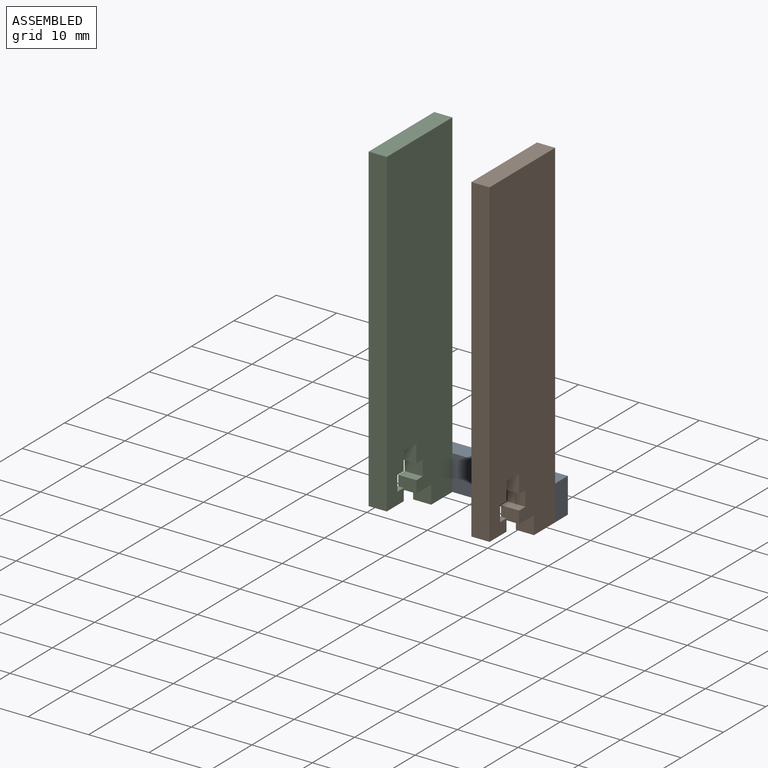
[diagram: assembled view]
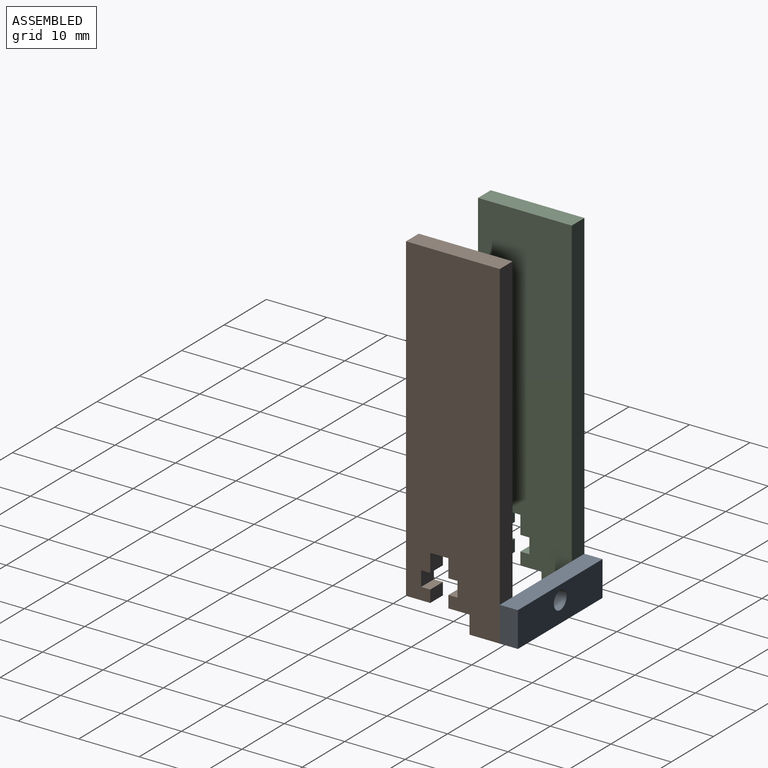
[diagram: assembled view, second angle]
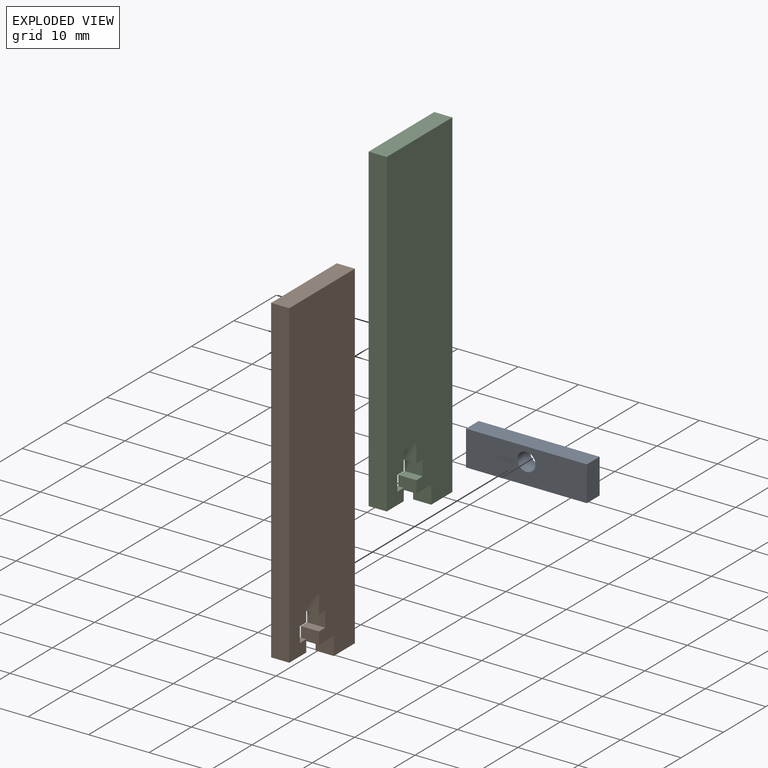
[diagram: exploded view]
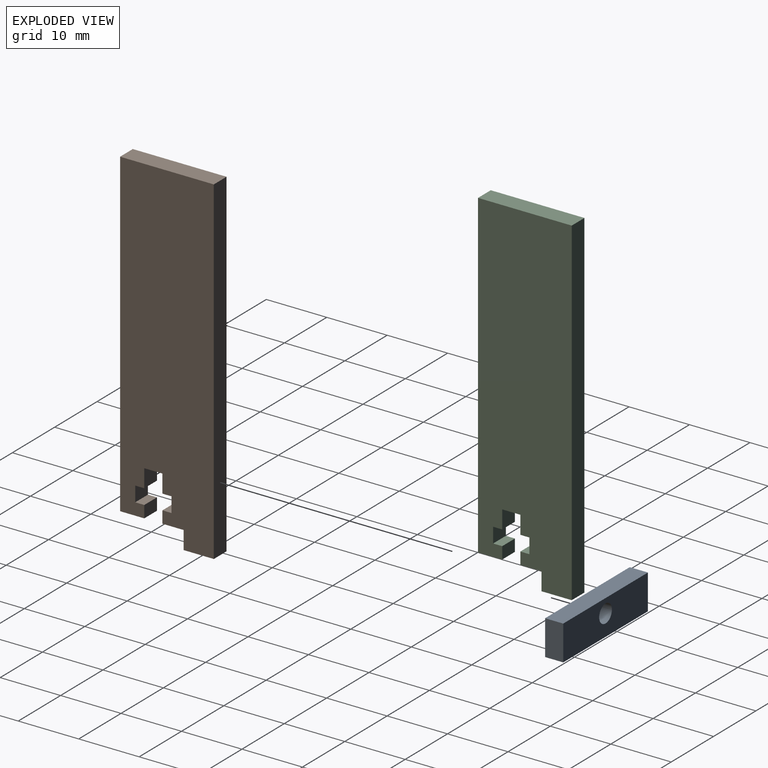
[diagram: exploded view, second angle]
ASSEMBLY  parts=3 mates=2
PART A: 7 faces, bbox 20x3x5.8 mm
  f0: plane 20x3mm, normal (0,0,1), area 60mm2, adj f1,f4,f5,f6
  f1: plane 5.8x3mm, normal (-1,0,0), area 17.4mm2, adj f0,f2,f5,f6
  f2: plane 20x3mm, normal (0,0,-1), area 60mm2, adj f1,f4,f5,f6
  f3: cylinder r=1.5mm len=3mm, axis (0,1,0), area 28.3mm2, adj f5,f6
  f4: plane 5.8x3mm, normal (1,0,0), area 17.4mm2, adj f0,f2,f5,f6
  f5: plane 20x5.8mm, normal (0,-1,0), area 108.9mm2, adj f0,f1,f2,f3,f4
  f6: plane 20x5.8mm, normal (0,1,0), area 108.9mm2, adj f0,f1,f2,f3,f4
PART B: 20 faces, bbox 15.5x56x3 mm
  f0: plane 3x1.5mm, normal (0,1,0), area 4.5mm2, adj f1,f17,f18,f19
  f1: plane 3x2mm, normal (-1,0,0), area 6mm2, adj f0,f2,f18,f19
  f2: plane 3.5x3mm, normal (0,-1,0), area 10.5mm2, adj f1,f3,f18,f19
  f3: plane 3x3mm, normal (-1,0,0), area 9mm2, adj f2,f4,f18,f19
  f4: plane 5x3mm, normal (0,-1,0), area 15mm2, adj f3,f5,f18,f19
  f5: plane 56x3mm, normal (1,0,0), area 168mm2, adj f4,f6,f18,f19
  f6: plane 15.5x3mm, normal (0,1,0), area 46.5mm2, adj f5,f7,f18,f19
  f7: plane 53x3mm, normal (-1,0,0), area 159mm2, adj f6,f8,f18,f19
  f8: plane 4x3mm, normal (0,-1,0), area 12mm2, adj f7,f9,f18,f19
  f9: plane 3x2mm, normal (1,0,0), area 6mm2, adj f8,f10,f18,f19
  f10: plane 3x1.5mm, normal (0,1,0), area 4.5mm2, adj f9,f11,f18,f19
  f11: plane 3x2.5mm, normal (1,0,0), area 7.5mm2, adj f10,f12,f18,f19
  f12: plane 3x1.5mm, normal (0,-1,0), area 4.5mm2, adj f11,f13,f18,f19
  f13: plane 3x3mm, normal (1,0,0), area 9mm2, adj f12,f14,f18,f19
  f14: plane 3x3mm, normal (0,-1,0), area 9mm2, adj f13,f15,f18,f19
  f15: plane 3x3mm, normal (-1,0,0), area 9mm2, adj f14,f16,f18,f19
  f16: plane 3x1.5mm, normal (0,-1,0), area 4.5mm2, adj f15,f17,f18,f19
  f17: plane 3x2.5mm, normal (-1,0,0), area 7.5mm2, adj f0,f16,f18,f19
  f18: plane 56x15.5mm, normal (0,0,1), area 806.5mm2, adj f0,f1,f2,f3,f4,f5,f6,f7
  f19: plane 56x15.5mm, normal (0,0,-1), area 806.5mm2, adj f0,f1,f2,f3,f4,f5,f6,f7
PART C: same geometry as B
PLACE A rot(axis=(1,0,0),180deg) t=(-26.1,10.37,3.59)mm
PLACE B rot(axis=(0.58,0.58,0.58),120deg) t=(-19.1,-5.13,3.09)mm
PLACE C rot(axis=(0.58,0.58,0.58),120deg) t=(-36.1,-5.13,3.09)mm
MATE fastened B.f5 <-> A.f6  axis (0,1,0) through (-16.1,10.37,0.09)mm
MATE fastened A.f6 <-> C.f5  axis (0,-1,0) through (-36.1,10.37,0.09)mm
